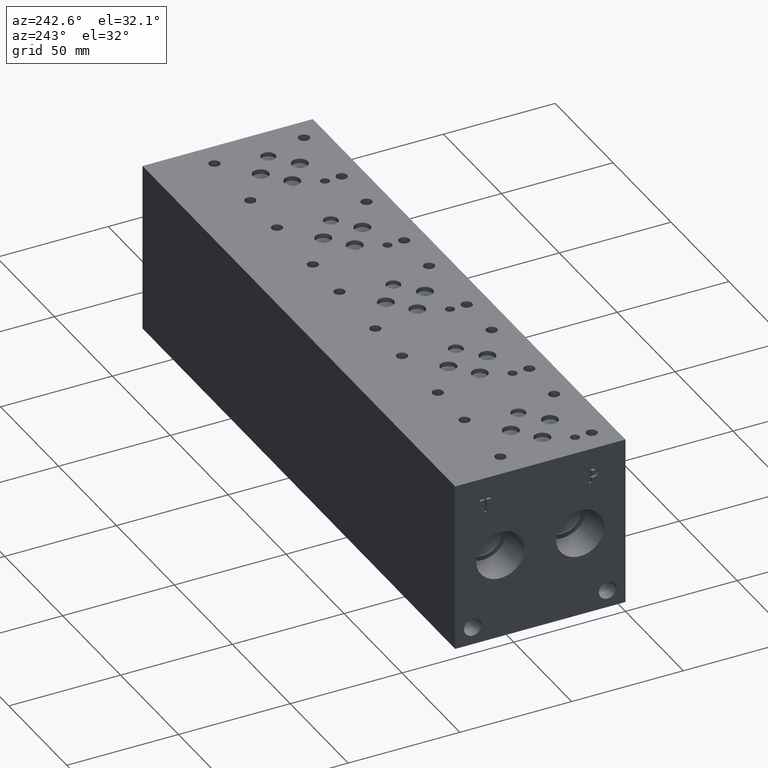
[diagram: clean part render]
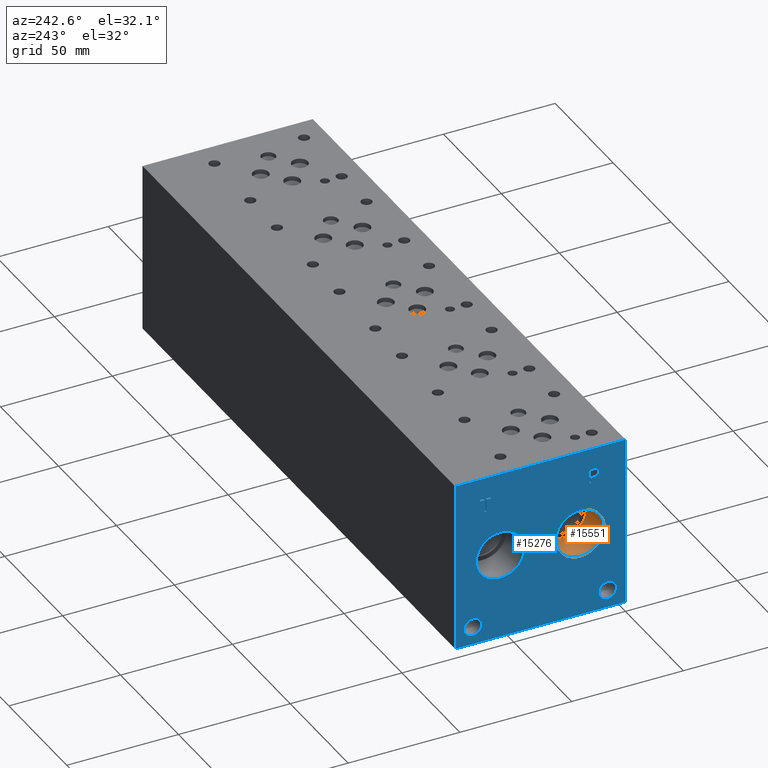
[diagram: same view with the hole feature highlighted: cylindrical wall and planar end face, labeled with their STEP entity ids]
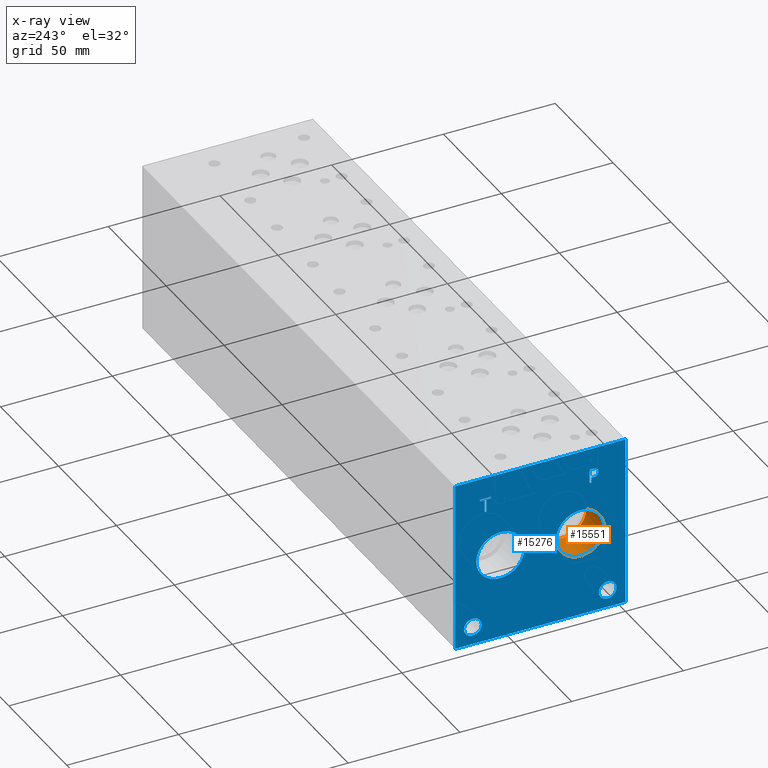
[diagram: x-ray of the same camera — body ghosted, the hole faces saturated]
A machine part, auxiliary view. The highlighted faces form one hole feature of diameter 21.59 mm: the cylindrical wall (entity #15551, orange) and its adjacent planar end face (entity #15276, blue) — they share a circular edge in the B-rep.
The next image is the same camera in x-ray (body ghosted, the hole faces saturated) — the bore reads through the body.
Wall:
#28=CYLINDRICAL_SURFACE('',#16254,10.795);
#211=CIRCLE('',#16016,10.795);
#212=CIRCLE('',#16017,10.795);
#256=CIRCLE('',#16251,10.795);
#257=CIRCLE('',#16252,10.795);
#1789=FACE_OUTER_BOUND('',#2686,.T.);
#2686=EDGE_LOOP('',(#13209,#13210,#13211,#13212,#13213,#13214));
#4192=LINE('',#26207,#5587);
#5587=VECTOR('',#18997,10.795);
#6935=VERTEX_POINT('',#24009);
#6936=VERTEX_POINT('',#24010);
#7299=VERTEX_POINT('',#26200);
#7300=VERTEX_POINT('',#26201);
#8781=EDGE_CURVE('',#6935,#6936,#211,.T.);
#8782=EDGE_CURVE('',#6936,#6935,#212,.T.);
#9374=EDGE_CURVE('',#7299,#7300,#256,.T.);
#9375=EDGE_CURVE('',#7300,#7299,#257,.T.);
#9377=EDGE_CURVE('',#6936,#7300,#4192,.T.);
#13209=ORIENTED_EDGE('',*,*,#8781,.F.);
#13210=ORIENTED_EDGE('',*,*,#8782,.F.);
#13211=ORIENTED_EDGE('',*,*,#9377,.T.);
#13212=ORIENTED_EDGE('',*,*,#9374,.F.);
#13213=ORIENTED_EDGE('',*,*,#9375,.F.);
#13214=ORIENTED_EDGE('',*,*,#9377,.F.);
#15551=ADVANCED_FACE('',(#1789),#28,.F.);
#16016=AXIS2_PLACEMENT_3D('',#24011,#18095,#18096);
#16017=AXIS2_PLACEMENT_3D('',#24012,#18097,#18098);
#16251=AXIS2_PLACEMENT_3D('',#26202,#18989,#18990);
#16252=AXIS2_PLACEMENT_3D('',#26203,#18991,#18992);
#16254=AXIS2_PLACEMENT_3D('',#26206,#18995,#18996);
#18095=DIRECTION('center_axis',(1.,0.,0.));
#18096=DIRECTION('ref_axis',(0.,1.,0.));
#18097=DIRECTION('center_axis',(1.,0.,0.));
#18098=DIRECTION('ref_axis',(0.,1.,0.));
#18989=DIRECTION('center_axis',(-1.,0.,0.));
#18990=DIRECTION('ref_axis',(0.,1.,0.));
#18991=DIRECTION('center_axis',(-1.,0.,0.));
#18992=DIRECTION('ref_axis',(0.,1.,0.));
#18995=DIRECTION('center_axis',(-1.,0.,0.));
#18996=DIRECTION('ref_axis',(0.,1.,0.));
#18997=DIRECTION('',(1.,0.,0.));
#24009=CARTESIAN_POINT('',(0.,31.0388,38.1));
#24010=CARTESIAN_POINT('',(0.,9.4488,38.1));
#24011=CARTESIAN_POINT('Origin',(0.,20.2438,38.1));
#24012=CARTESIAN_POINT('Origin',(0.,20.2438,38.1));
#26200=CARTESIAN_POINT('',(15.367,31.0388,38.1));
#26201=CARTESIAN_POINT('',(15.367,9.4488,38.1));
#26202=CARTESIAN_POINT('Origin',(15.367,20.2438,38.1));
#26203=CARTESIAN_POINT('Origin',(15.367,20.2438,38.1));
#26206=CARTESIAN_POINT('Origin',(7.6835,20.2438,38.1));
#26207=CARTESIAN_POINT('',(7.6835,9.4488,38.1));
End face:
#211=CIRCLE('',#16016,10.795);
#212=CIRCLE('',#16017,10.795);
#213=CIRCLE('',#16018,10.795);
#214=CIRCLE('',#16019,10.795);
#215=CIRCLE('',#16020,3.9624);
#216=CIRCLE('',#16021,3.9624);
#217=CIRCLE('',#16022,3.9624);
#218=CIRCLE('',#16023,3.9624);
#611=FACE_BOUND('',#2382,.T.);
#612=FACE_BOUND('',#2383,.T.);
#613=FACE_BOUND('',#2384,.T.);
#614=FACE_BOUND('',#2385,.T.);
#615=FACE_BOUND('',#2386,.T.);
#616=FACE_BOUND('',#2387,.T.);
#955=PLANE('',#16015);
#1514=FACE_OUTER_BOUND('',#2381,.T.);
#2381=EDGE_LOOP('',(#11888,#11889,#11890,#11891));
#2382=EDGE_LOOP('',(#11892,#11893));
#2383=EDGE_LOOP('',(#11894,#11895));
#2384=EDGE_LOOP('',(#11896,#11897));
#2385=EDGE_LOOP('',(#11898,#11899));
#2386=EDGE_LOOP('',(#11900,#11901,#11902,#11903,#11904,#11905,#11906,#11907));
#2387=EDGE_LOOP('',(#11908,#11909,#11910,#11911,#11912,#11913,#11914,#11915,
#11916));
#3221=LINE('',#22209,#4616);
#3749=LINE('',#23939,#5144);
#3752=LINE('',#23945,#5147);
#3755=LINE('',#23951,#5150);
#3758=LINE('',#23957,#5153);
#3761=LINE('',#23963,#5156);
#3765=LINE('',#24005,#5160);
#3766=LINE('',#24007,#5161);
#3767=LINE('',#24008,#5162);
#3768=LINE('',#24027,#5163);
#3769=LINE('',#24029,#5164);
#3770=LINE('',#24031,#5165);
#3771=LINE('',#24033,#5166);
#3772=LINE('',#24035,#5167);
#3773=LINE('',#24037,#5168);
#3774=LINE('',#24039,#5169);
#3775=LINE('',#24040,#5170);
#4616=VECTOR('',#17152,10.);
#5144=VECTOR('',#18064,10.);
#5147=VECTOR('',#18069,10.);
#5150=VECTOR('',#18074,10.);
#5153=VECTOR('',#18079,10.);
#5156=VECTOR('',#18084,10.);
#5160=VECTOR('',#18092,10.);
#5161=VECTOR('',#18093,10.);
#5162=VECTOR('',#18094,10.);
#5163=VECTOR('',#18111,10.);
#5164=VECTOR('',#18112,10.);
#5165=VECTOR('',#18113,10.);
#5166=VECTOR('',#18114,10.);
#5167=VECTOR('',#18115,10.);
#5168=VECTOR('',#18116,10.);
#5169=VECTOR('',#18117,10.);
#5170=VECTOR('',#18118,10.);
#6000=B_SPLINE_CURVE_WITH_KNOTS('',2,(#23906,#23907,#23908,#23909),
 .UNSPECIFIED.,.F.,.F.,(3,1,3),(0.,1.,2.),.UNSPECIFIED.);
#6002=B_SPLINE_CURVE_WITH_KNOTS('',2,(#23927,#23928,#23929,#23930),
 .UNSPECIFIED.,.F.,.F.,(3,1,3),(0.,1.,2.),.UNSPECIFIED.);
#6004=B_SPLINE_CURVE_WITH_KNOTS('',2,(#23976,#23977,#23978,#23979),
 .UNSPECIFIED.,.F.,.F.,(3,1,3),(0.,1.,2.),.UNSPECIFIED.);
#6006=B_SPLINE_CURVE_WITH_KNOTS('',2,(#23994,#23995,#23996,#23997),
 .UNSPECIFIED.,.F.,.F.,(3,1,3),(0.,1.,2.),.UNSPECIFIED.);
#6436=VERTEX_POINT('',#22202);
#6439=VERTEX_POINT('',#22207);
#6915=VERTEX_POINT('',#23904);
#6916=VERTEX_POINT('',#23905);
#6919=VERTEX_POINT('',#23926);
#6921=VERTEX_POINT('',#23938);
#6923=VERTEX_POINT('',#23944);
#6925=VERTEX_POINT('',#23950);
#6927=VERTEX_POINT('',#23956);
#6929=VERTEX_POINT('',#23962);
#6931=VERTEX_POINT('',#23975);
#6933=VERTEX_POINT('',#24004);
#6934=VERTEX_POINT('',#24006);
#6935=VERTEX_POINT('',#24009);
#6936=VERTEX_POINT('',#24010);
#6937=VERTEX_POINT('',#24013);
#6938=VERTEX_POINT('',#24014);
#6939=VERTEX_POINT('',#24017);
#6940=VERTEX_POINT('',#24018);
#6941=VERTEX_POINT('',#24021);
#6942=VERTEX_POINT('',#24022);
#6943=VERTEX_POINT('',#24025);
#6944=VERTEX_POINT('',#24026);
#6945=VERTEX_POINT('',#24028);
#6946=VERTEX_POINT('',#24030);
#6947=VERTEX_POINT('',#24032);
#6948=VERTEX_POINT('',#24034);
#6949=VERTEX_POINT('',#24036);
#6950=VERTEX_POINT('',#24038);
#8112=EDGE_CURVE('',#6436,#6439,#3221,.T.);
#8751=EDGE_CURVE('',#6915,#6916,#6000,.T.);
#8755=EDGE_CURVE('',#6919,#6915,#6002,.T.);
#8758=EDGE_CURVE('',#6921,#6919,#3749,.T.);
#8761=EDGE_CURVE('',#6923,#6921,#3752,.T.);
#8764=EDGE_CURVE('',#6925,#6923,#3755,.T.);
#8767=EDGE_CURVE('',#6927,#6925,#3758,.T.);
#8770=EDGE_CURVE('',#6929,#6927,#3761,.T.);
#8773=EDGE_CURVE('',#6931,#6929,#6004,.T.);
#8776=EDGE_CURVE('',#6916,#6931,#6006,.T.);
#8778=EDGE_CURVE('',#6933,#6436,#3765,.T.);
#8779=EDGE_CURVE('',#6934,#6439,#3766,.T.);
#8780=EDGE_CURVE('',#6933,#6934,#3767,.T.);
#8781=EDGE_CURVE('',#6935,#6936,#211,.T.);
#8782=EDGE_CURVE('',#6936,#6935,#212,.T.);
#8783=EDGE_CURVE('',#6937,#6938,#213,.T.);
#8784=EDGE_CURVE('',#6938,#6937,#214,.T.);
#8785=EDGE_CURVE('',#6939,#6940,#215,.T.);
#8786=EDGE_CURVE('',#6940,#6939,#216,.T.);
#8787=EDGE_CURVE('',#6941,#6942,#217,.T.);
#8788=EDGE_CURVE('',#6942,#6941,#218,.T.);
#8789=EDGE_CURVE('',#6943,#6944,#3768,.T.);
#8790=EDGE_CURVE('',#6944,#6945,#3769,.T.);
#8791=EDGE_CURVE('',#6945,#6946,#3770,.T.);
#8792=EDGE_CURVE('',#6946,#6947,#3771,.T.);
#8793=EDGE_CURVE('',#6947,#6948,#3772,.T.);
#8794=EDGE_CURVE('',#6948,#6949,#3773,.T.);
#8795=EDGE_CURVE('',#6949,#6950,#3774,.T.);
#8796=EDGE_CURVE('',#6950,#6943,#3775,.T.);
#11888=ORIENTED_EDGE('',*,*,#8778,.T.);
#11889=ORIENTED_EDGE('',*,*,#8112,.T.);
#11890=ORIENTED_EDGE('',*,*,#8779,.F.);
#11891=ORIENTED_EDGE('',*,*,#8780,.F.);
#11892=ORIENTED_EDGE('',*,*,#8781,.T.);
#11893=ORIENTED_EDGE('',*,*,#8782,.T.);
#11894=ORIENTED_EDGE('',*,*,#8783,.T.);
#11895=ORIENTED_EDGE('',*,*,#8784,.T.);
#11896=ORIENTED_EDGE('',*,*,#8785,.T.);
#11897=ORIENTED_EDGE('',*,*,#8786,.T.);
#11898=ORIENTED_EDGE('',*,*,#8787,.T.);
#11899=ORIENTED_EDGE('',*,*,#8788,.T.);
#11900=ORIENTED_EDGE('',*,*,#8789,.T.);
#11901=ORIENTED_EDGE('',*,*,#8790,.T.);
#11902=ORIENTED_EDGE('',*,*,#8791,.T.);
#11903=ORIENTED_EDGE('',*,*,#8792,.T.);
#11904=ORIENTED_EDGE('',*,*,#8793,.T.);
#11905=ORIENTED_EDGE('',*,*,#8794,.T.);
#11906=ORIENTED_EDGE('',*,*,#8795,.T.);
#11907=ORIENTED_EDGE('',*,*,#8796,.T.);
#11908=ORIENTED_EDGE('',*,*,#8751,.T.);
#11909=ORIENTED_EDGE('',*,*,#8776,.T.);
#11910=ORIENTED_EDGE('',*,*,#8773,.T.);
#11911=ORIENTED_EDGE('',*,*,#8770,.T.);
#11912=ORIENTED_EDGE('',*,*,#8767,.T.);
#11913=ORIENTED_EDGE('',*,*,#8764,.T.);
#11914=ORIENTED_EDGE('',*,*,#8761,.T.);
#11915=ORIENTED_EDGE('',*,*,#8758,.T.);
#11916=ORIENTED_EDGE('',*,*,#8755,.T.);
#15276=ADVANCED_FACE('',(#1514,#611,#612,#613,#614,#615,#616),#955,.T.);
#16015=AXIS2_PLACEMENT_3D('',#24003,#18090,#18091);
#16016=AXIS2_PLACEMENT_3D('',#24011,#18095,#18096);
#16017=AXIS2_PLACEMENT_3D('',#24012,#18097,#18098);
#16018=AXIS2_PLACEMENT_3D('',#24015,#18099,#18100);
#16019=AXIS2_PLACEMENT_3D('',#24016,#18101,#18102);
#16020=AXIS2_PLACEMENT_3D('',#24019,#18103,#18104);
#16021=AXIS2_PLACEMENT_3D('',#24020,#18105,#18106);
#16022=AXIS2_PLACEMENT_3D('',#24023,#18107,#18108);
#16023=AXIS2_PLACEMENT_3D('',#24024,#18109,#18110);
#17152=DIRECTION('',(0.,0.,1.));
#18064=DIRECTION('',(0.,-1.,-5.56775304226775E-15));
#18069=DIRECTION('',(0.,-3.14708893596576E-15,1.));
#18074=DIRECTION('',(0.,1.,1.0524411238433E-14));
#18079=DIRECTION('',(0.,3.75218139804999E-15,-1.));
#18084=DIRECTION('',(0.,1.,1.24172909575755E-14));
#18090=DIRECTION('center_axis',(-1.,0.,0.));
#18091=DIRECTION('ref_axis',(0.,-1.,0.));
#18092=DIRECTION('',(0.,-1.,0.));
#18093=DIRECTION('',(0.,-1.,0.));
#18094=DIRECTION('',(0.,0.,1.));
#18095=DIRECTION('center_axis',(1.,0.,0.));
#18096=DIRECTION('ref_axis',(0.,1.,0.));
#18097=DIRECTION('center_axis',(1.,0.,0.));
#18098=DIRECTION('ref_axis',(0.,1.,0.));
#18099=DIRECTION('center_axis',(1.,0.,0.));
#18100=DIRECTION('ref_axis',(0.,1.,0.));
#18101=DIRECTION('center_axis',(1.,0.,0.));
#18102=DIRECTION('ref_axis',(0.,1.,0.));
#18103=DIRECTION('center_axis',(1.,0.,0.));
#18104=DIRECTION('ref_axis',(0.,1.,0.));
#18105=DIRECTION('center_axis',(1.,0.,0.));
#18106=DIRECTION('ref_axis',(0.,1.,0.));
#18107=DIRECTION('center_axis',(1.,0.,0.));
#18108=DIRECTION('ref_axis',(0.,1.,0.));
#18109=DIRECTION('center_axis',(1.,0.,0.));
#18110=DIRECTION('ref_axis',(0.,1.,0.));
#18111=DIRECTION('',(0.,1.,0.));
#18112=DIRECTION('',(0.,-3.17280044688052E-15,1.));
#18113=DIRECTION('',(0.,1.,4.16909044227779E-15));
#18114=DIRECTION('',(0.,0.,1.));
#18115=DIRECTION('',(0.,-1.,-3.47984565141734E-15));
#18116=DIRECTION('',(0.,0.,-1.));
#18117=DIRECTION('',(0.,1.,4.16909044227778E-15));
#18118=DIRECTION('',(0.,3.17280044688052E-15,-1.));
#22202=CARTESIAN_POINT('',(0.,0.,0.));
#22207=CARTESIAN_POINT('',(0.,0.,76.2));
#22209=CARTESIAN_POINT('',(0.,0.,0.));
#23904=CARTESIAN_POINT('',(0.,12.7681827976406,66.2787681439707));
#23905=CARTESIAN_POINT('',(0.,12.011740345468,64.7607373726039));
#23906=CARTESIAN_POINT('Ctrl Pts',(0.,12.7681827976406,66.2787681439707));
#23907=CARTESIAN_POINT('Ctrl Pts',(0.,12.4131179731514,66.0369123939564));
#23908=CARTESIAN_POINT('Ctrl Pts',(0.,12.011740345468,65.2907616758269));
#23909=CARTESIAN_POINT('Ctrl Pts',(0.,12.011740345468,64.7607373726039));
#23926=CARTESIAN_POINT('',(0.,14.4302978456117,66.6749999046326));
#23927=CARTESIAN_POINT('Ctrl Pts',(0.,14.4302978456117,66.6749999046326));
#23928=CARTESIAN_POINT('Ctrl Pts',(0.,13.8642524732376,66.6749999046326));
#23929=CARTESIAN_POINT('Ctrl Pts',(0.,13.0717889519139,66.4897486918556));
#23930=CARTESIAN_POINT('Ctrl Pts',(0.,12.7681827976406,66.2787681439707));
#23938=CARTESIAN_POINT('',(0.,16.0255166223022,66.6749999046326));
#23939=CARTESIAN_POINT('',(0.,46.1127583111509,66.6749999046327));
#23944=CARTESIAN_POINT('',(0.,16.0255166223022,60.325));
#23945=CARTESIAN_POINT('',(0.,16.0255166223023,30.1624999999999));
#23950=CARTESIAN_POINT('',(0.,15.1815944307627,60.325));
#23951=CARTESIAN_POINT('',(0.,45.690797215381,60.3250000000003));
#23956=CARTESIAN_POINT('',(0.,15.1815944307627,62.6920988299279));
#23957=CARTESIAN_POINT('',(0.,15.1815944307628,31.3460494149638));
#23962=CARTESIAN_POINT('',(0.,14.4663189147628,62.6920988299279));
#23963=CARTESIAN_POINT('',(0.,45.333159457381,62.6920988299282));
#23975=CARTESIAN_POINT('',(0.,12.5674939837989,63.3507698086904));
#23976=CARTESIAN_POINT('Ctrl Pts',(0.,12.5674939837989,63.3507698086904));
#23977=CARTESIAN_POINT('Ctrl Pts',(0.,12.8968294731802,63.0265801863307));
#23978=CARTESIAN_POINT('Ctrl Pts',(0.,13.7870644679139,62.6920988299279));
#23979=CARTESIAN_POINT('Ctrl Pts',(0.,14.4663189147628,62.6920988299279));
#23994=CARTESIAN_POINT('Ctrl Pts',(0.,12.011740345468,64.7607373726039));
#23995=CARTESIAN_POINT('Ctrl Pts',(0.,12.011740345468,64.3490680108774));
#23996=CARTESIAN_POINT('Ctrl Pts',(0.,12.3050547656982,63.6080631597695));
#23997=CARTESIAN_POINT('Ctrl Pts',(0.,12.5674939837989,63.3507698086904));
#24003=CARTESIAN_POINT('Origin',(0.,76.2,0.));
#24004=CARTESIAN_POINT('',(0.,76.2,0.));
#24005=CARTESIAN_POINT('',(0.,76.2,0.));
#24006=CARTESIAN_POINT('',(0.,76.2,76.2));
#24007=CARTESIAN_POINT('',(0.,76.2,76.2));
#24008=CARTESIAN_POINT('',(0.,76.2,0.));
#24009=CARTESIAN_POINT('',(0.,31.0388,38.1));
#24010=CARTESIAN_POINT('',(0.,9.4488,38.1));
#24011=CARTESIAN_POINT('Origin',(0.,20.2438,38.1));
#24012=CARTESIAN_POINT('Origin',(0.,20.2438,38.1));
#24013=CARTESIAN_POINT('',(0.,66.7512,38.1));
#24014=CARTESIAN_POINT('',(0.,45.1612,38.1));
#24015=CARTESIAN_POINT('Origin',(0.,55.9562,38.1));
#24016=CARTESIAN_POINT('Origin',(0.,55.9562,38.1));
#24017=CARTESIAN_POINT('',(0.,72.2376,7.92480000000001));
#24018=CARTESIAN_POINT('',(0.,64.3128,7.92480000000001));
#24019=CARTESIAN_POINT('Origin',(0.,68.2752,7.92480000000001));
#24020=CARTESIAN_POINT('Origin',(0.,68.2752,7.92480000000001));
#24021=CARTESIAN_POINT('',(0.,11.8872,7.92480000000001));
#24022=CARTESIAN_POINT('',(0.,3.9624,7.92480000000001));
#24023=CARTESIAN_POINT('Origin',(0.,7.9248,7.92480000000001));
#24024=CARTESIAN_POINT('Origin',(0.,7.9248,7.92480000000001));
#24025=CARTESIAN_POINT('',(0.,62.118334728547,60.325));
#24026=CARTESIAN_POINT('',(0.,62.9622569200865,60.325));
#24027=CARTESIAN_POINT('',(0.,69.1591673642735,60.325));
#24028=CARTESIAN_POINT('',(0.,62.9622569200865,65.9237033194815));
#24029=CARTESIAN_POINT('',(0.,62.9622569200866,30.1625));
#24030=CARTESIAN_POINT('',(0.,65.0926458670216,65.9237033194816));
#24031=CARTESIAN_POINT('',(0.,69.5811284600431,65.9237033194816));
#24032=CARTESIAN_POINT('',(0.,65.0926458670216,66.6749999046326));
#24033=CARTESIAN_POINT('',(0.,65.0926458670216,32.9618516597408));
#24034=CARTESIAN_POINT('',(0.,59.9879457816119,66.6749999046326));
#24035=CARTESIAN_POINT('',(0.,70.6463229335107,66.6749999046326));
#24036=CARTESIAN_POINT('',(0.,59.9879457816119,65.9237033194815));
#24037=CARTESIAN_POINT('',(0.,59.9879457816119,33.3374999523163));
#24038=CARTESIAN_POINT('',(0.,62.118334728547,65.9237033194815));
#24039=CARTESIAN_POINT('',(0.,68.0939728908058,65.9237033194816));
#24040=CARTESIAN_POINT('',(0.,62.1183347285471,32.9618516597408));